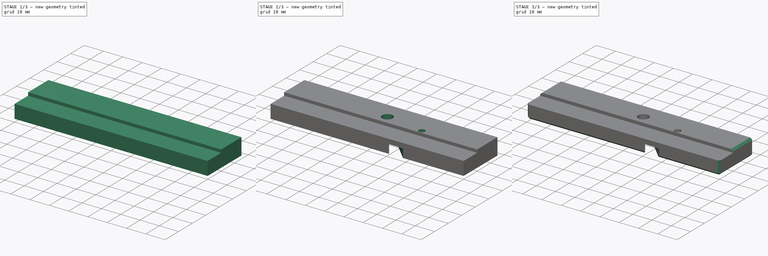
[diagram: build sequence overview — one tinted view per stage of 3, left to right]
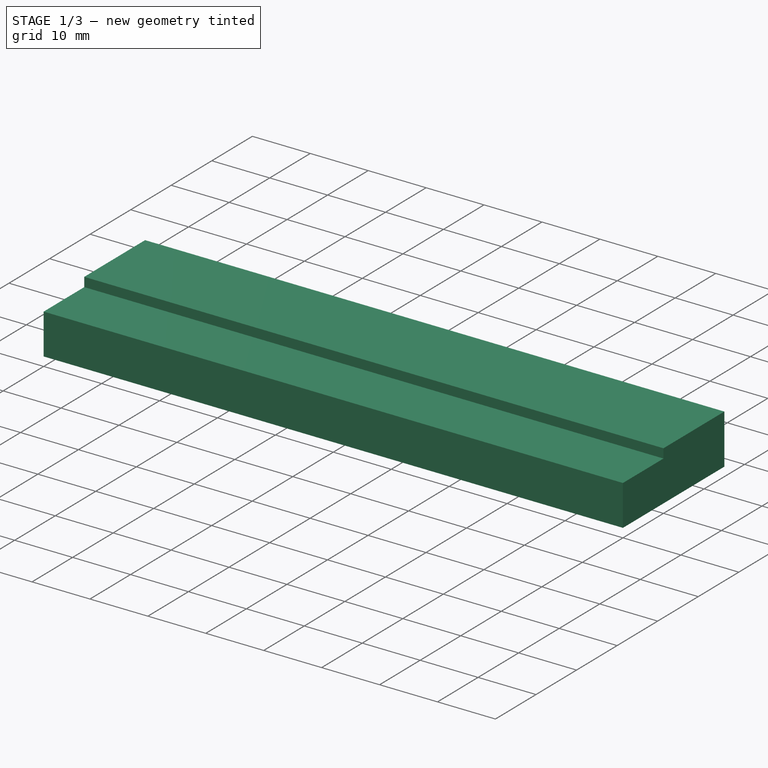
[diagram: stage 1 of 3 — iso view after this stage's code; geometry added in this stage tinted green]
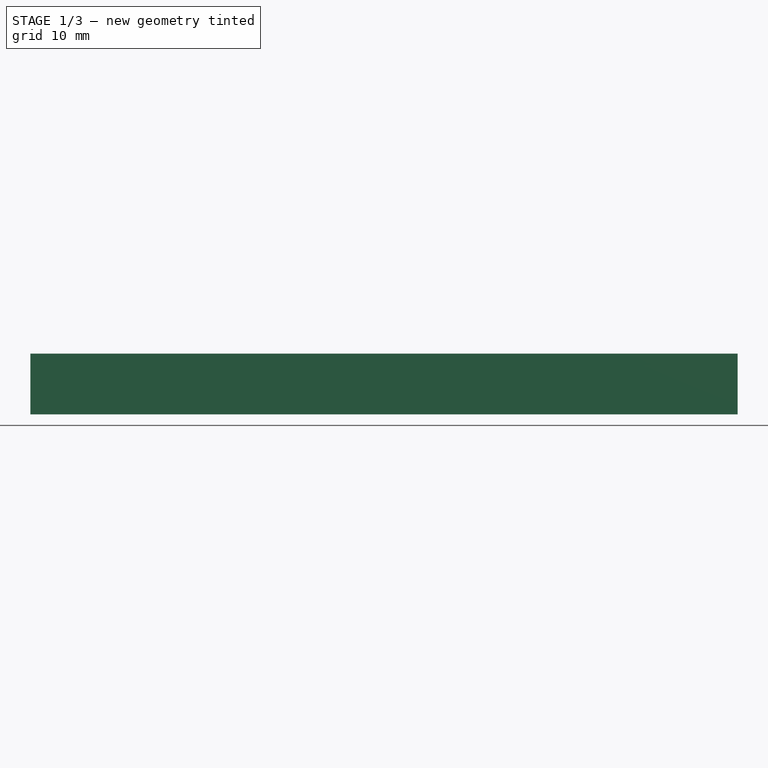
[diagram: stage 1 of 3 — front view after this stage's code; geometry added in this stage tinted green]
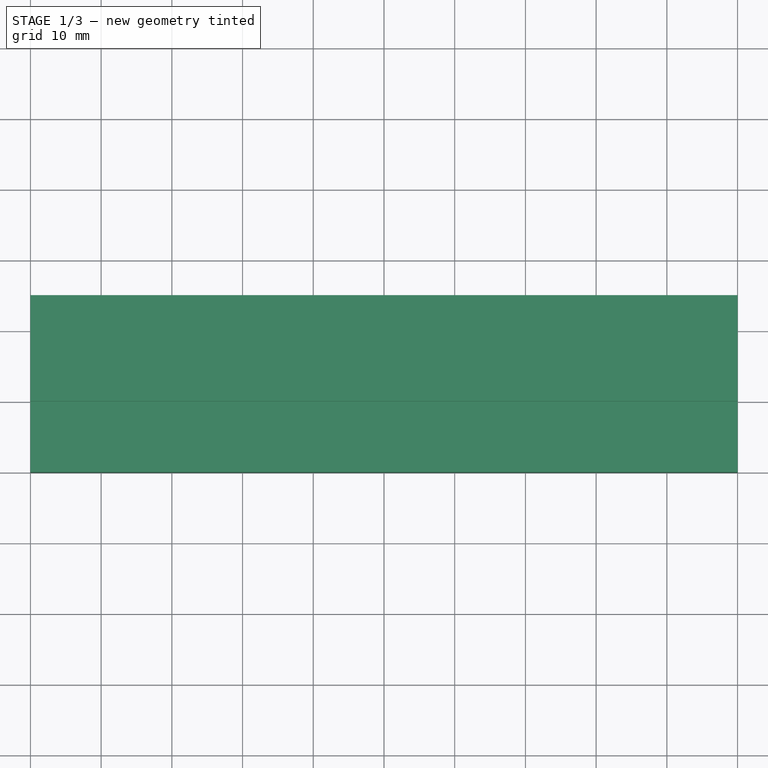
[diagram: stage 1 of 3 — top view after this stage's code; geometry added in this stage tinted green]
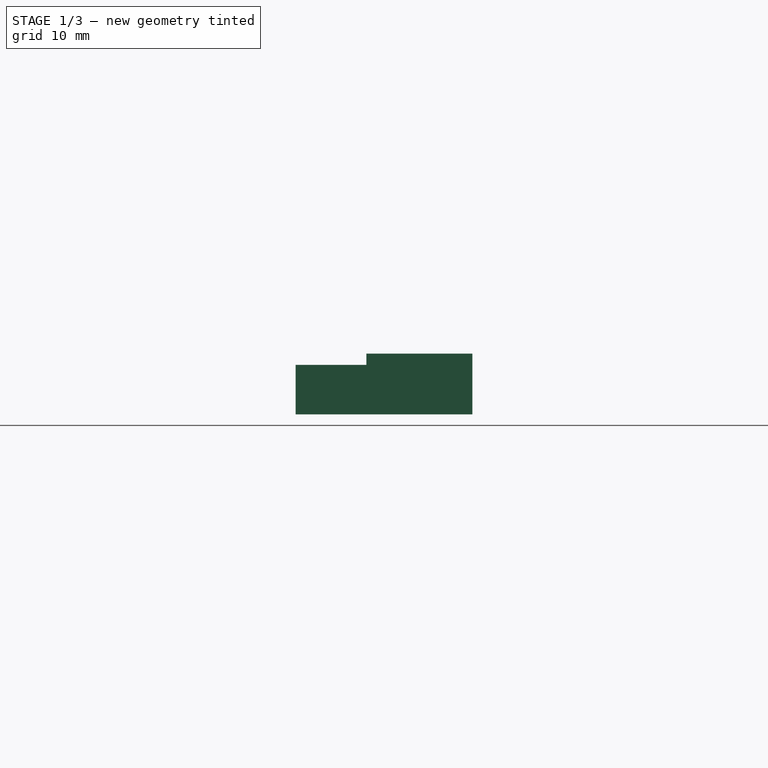
[diagram: stage 1 of 3 — right view after this stage's code; geometry added in this stage tinted green]
FCSTD DOCUMENT  (FreeCAD 0.16R6703 (Git))
Label: pnp board mount slide top
License: All rights reserved
LicenseURL: http://en.wikipedia.org/wiki/All_rights_reserved
objects: Sketcher::SketchObject×6, PartDesign::Pocket×5, PartDesign::Pad×1, PartDesign::Chamfer×1
note: 19 computed .brp shape members not serialized (recipe doc carries the construction recipe); baked Part::Feature solids carry a one-line shape summary decoded from their .brp

FEATURE [Sketcher::SketchObject] Sketch
  sketch-geometry (4):
    g0: LineSegment StartX=0 StartY=25 StartZ=0 EndX=100 EndY=25 EndZ=0
    g1: LineSegment StartX=100 StartY=25 StartZ=0 EndX=100 EndY=0 EndZ=0
    g2: LineSegment StartX=100 StartY=0 StartZ=0 EndX=0 EndY=0 EndZ=0
    g3: LineSegment StartX=0 StartY=0 StartZ=0 EndX=0 EndY=25 EndZ=0
  constraints (11):
    c: Coincident(g0,g1)
    c: Coincident(g1,g2)
    c: Coincident(g2,g3)
    c: Coincident(g3,g0)
    c: Horizontal(g0)
    c: Horizontal(g2)
    c: Vertical(g1)
    c: Vertical(g3)
    c: Coincident(g2,g-1)
    c: DistanceY(g1,g1) = 25
    c: DistanceX(g0,g0) = 100
FEATURE [PartDesign::Pad] Pad
  Length = 8.6
  Length2 = 100
  Sketch = -> Sketch
  Type = 0
FEATURE [Sketcher::SketchObject] Sketch001
  Placement = pos=(0,0,8.6) rot=(0,0,1;0rad)
  Support = -> Pad [Face6]
  sketch-geometry (4):
    g0: LineSegment StartX=-6.18261 StartY=10 StartZ=0 EndX=105 EndY=10 EndZ=0
    g1: LineSegment StartX=105 StartY=10 StartZ=0 EndX=105 EndY=-3.53542 EndZ=0
    g2: LineSegment StartX=105 StartY=-3.53542 StartZ=0 EndX=-6.18261 EndY=-3.53542 EndZ=0
    g3: LineSegment StartX=-6.18261 StartY=-3.53542 StartZ=0 EndX=-6.18261 EndY=10 EndZ=0
  constraints (8):
    c: Coincident(g0,g1)
    c: Coincident(g1,g2)
    c: Coincident(g2,g3)
    c: Coincident(g3,g0)
    c: Horizontal(g0)
    c: Horizontal(g2)
    c: Vertical(g1)
    c: Vertical(g3)
FEATURE [PartDesign::Pocket] Pocket
  Length = 1.6
  Sketch = -> Sketch001
  Type = 0
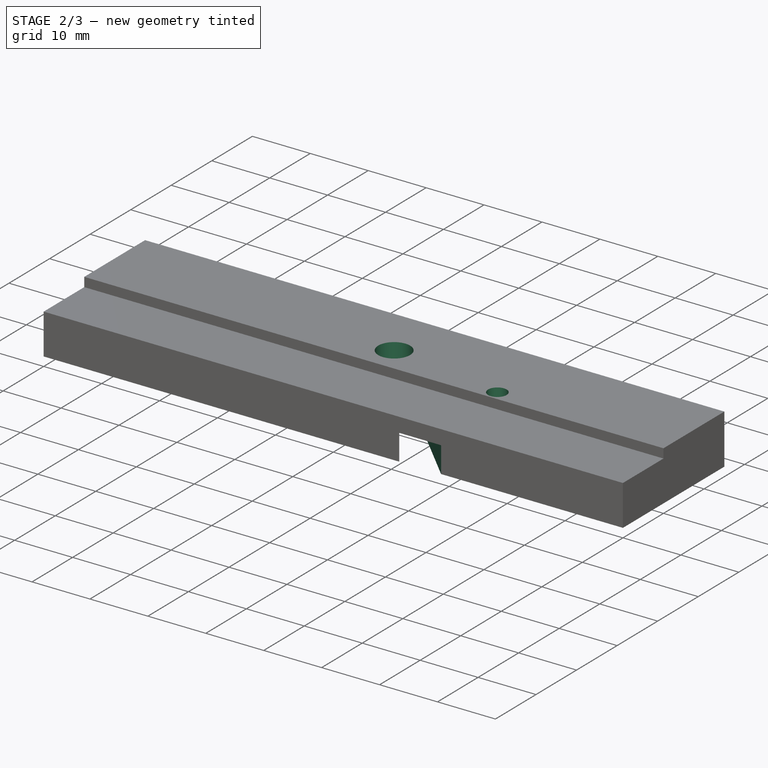
[diagram: stage 2 of 3 — iso view after this stage's code; geometry added in this stage tinted green]
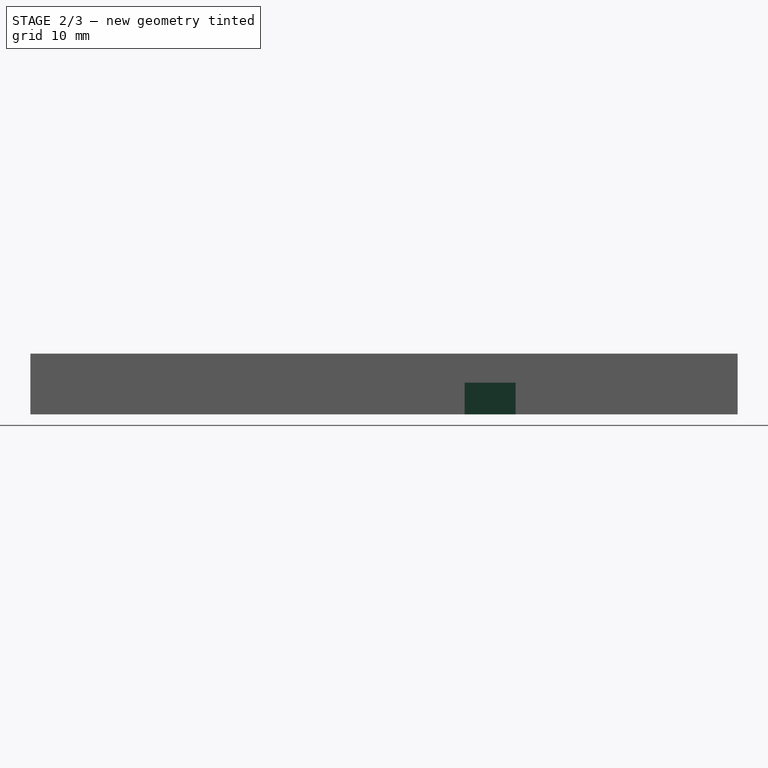
[diagram: stage 2 of 3 — front view after this stage's code; geometry added in this stage tinted green]
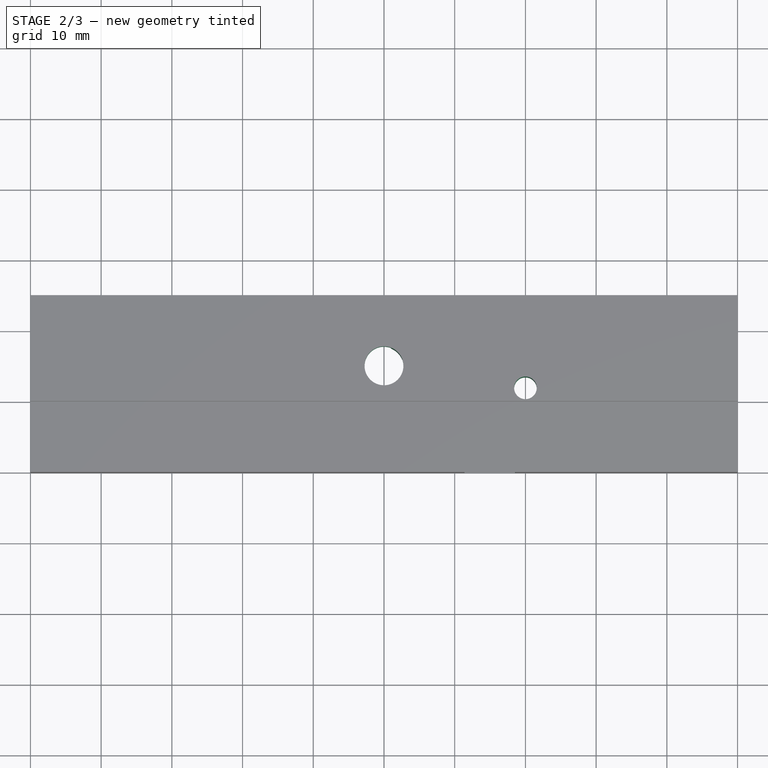
[diagram: stage 2 of 3 — top view after this stage's code; geometry added in this stage tinted green]
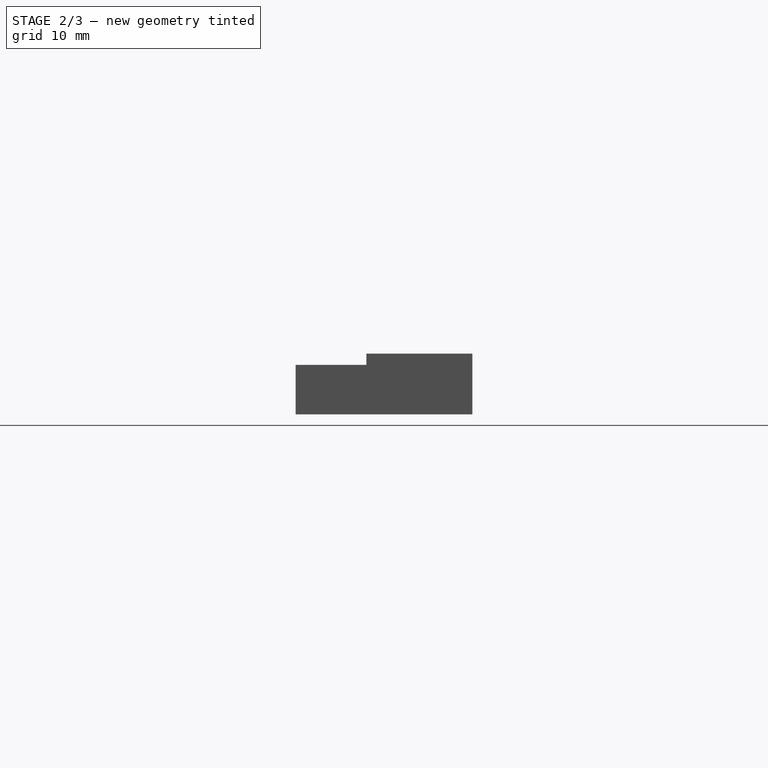
[diagram: stage 2 of 3 — right view after this stage's code; geometry added in this stage tinted green]
FEATURE [Sketcher::SketchObject] Sketch002
  Placement = pos=(0,0,8.6) rot=(0,0,1;0rad)
  Support = -> Pocket [Face5]
  sketch-geometry (2):
    g0: Circle CenterX=50 CenterY=15 CenterZ=0 NormalX=0 NormalY=0 NormalZ=1 Radius=2.75
    g1: Circle [constr] CenterX=50 CenterY=15 CenterZ=0 NormalX=0 NormalY=0 NormalZ=1 Radius=4.25
  constraints (4):
    c: Radius(g0) = 2.75
    c: DistanceX(g-1,g0) = 50
    c: Coincident(g1,g0)
    c: Radius(g1) = 4.25
FEATURE [PartDesign::Pocket] Pocket001
  Length = 5
  Sketch = -> Sketch002
  Type = 1
FEATURE [Sketcher::SketchObject] Sketch003
  Placement = pos=(0,0,0) rot=(1,0,0;3.14159rad)
  Support = -> Pocket001 [Face4]
  sketch-geometry (4):
    g0: ArcOfCircle CenterX=35.2626 CenterY=-29.7374 CenterZ=0 NormalX=0 NormalY=0 NormalZ=1 Radius=2.55 StartAngle=2.35619 EndAngle=5.49779
    g1: ArcOfCircle CenterX=70 CenterY=5 CenterZ=0 NormalX=0 NormalY=0 NormalZ=1 Radius=2.55 StartAngle=5.49779 EndAngle=8.63938
    g2: LineSegment StartX=37.0657 StartY=-31.5406 StartZ=0 EndX=71.8031 EndY=3.19688 EndZ=0
    g3: LineSegment StartX=33.4594 StartY=-27.9343 StartZ=0 EndX=68.1969 EndY=6.80312 EndZ=0
  constraints (7):
    c: Tangent(g0,g3) = 1.5708
    c: Tangent(g0,g2) = -1.5708
    c: Tangent(g2,g1) = -1.5708
    c: Tangent(g3,g1) = 1.5708
    c: Equal(g0,g1)
    c: Radius(g1) = 2.55
    c: Angle(g2) = 0.785398
FEATURE [PartDesign::Pocket] Pocket002
  Length = 4.5
  Sketch = -> Sketch003
  Type = 0
FEATURE [Sketcher::SketchObject] Sketch004
  Placement = pos=(0,0,8.6) rot=(0,0,1;0rad)
  Support = -> Pocket002 [Face8]
  sketch-geometry (2):
    g0: Circle CenterX=70 CenterY=11.8862 CenterZ=0 NormalX=0 NormalY=0 NormalZ=1 Radius=1.6
    g1: Circle [constr] CenterX=70 CenterY=11.8862 CenterZ=0 NormalX=0 NormalY=0 NormalZ=1 Radius=2.75886
  constraints (2):
    c: Radius(g0) = 1.6
    c: Coincident(g1,g0)
FEATURE [PartDesign::Pocket] Pocket003
  Length = 5
  Sketch = -> Sketch004
  Type = 1
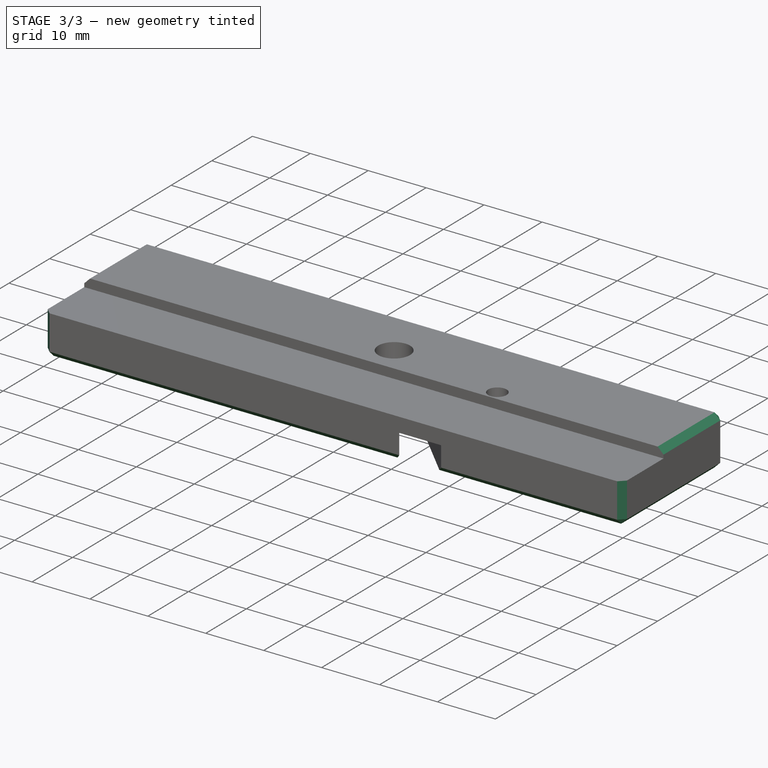
[diagram: stage 3 of 3 — iso view after this stage's code; geometry added in this stage tinted green]
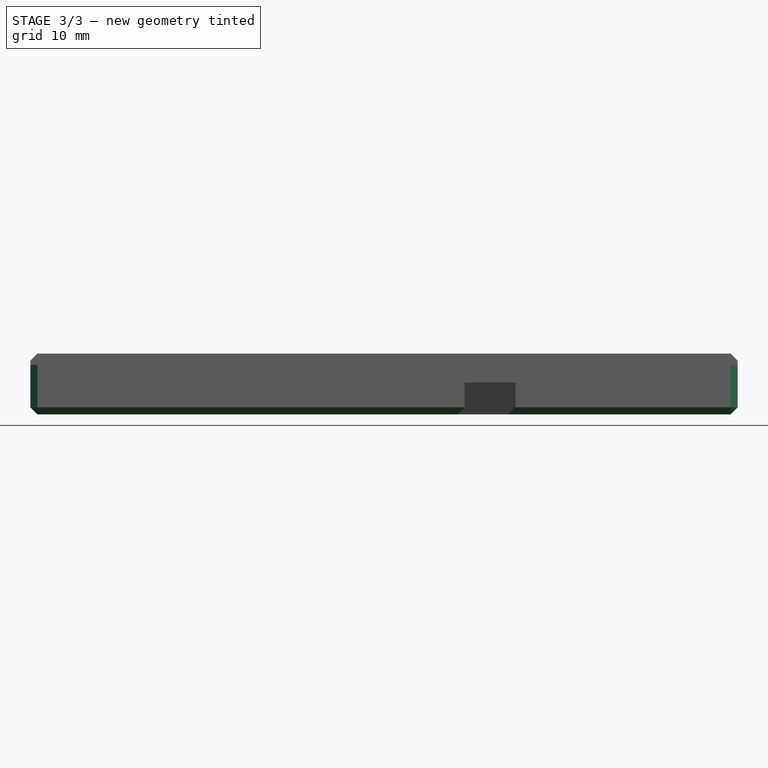
[diagram: stage 3 of 3 — front view after this stage's code; geometry added in this stage tinted green]
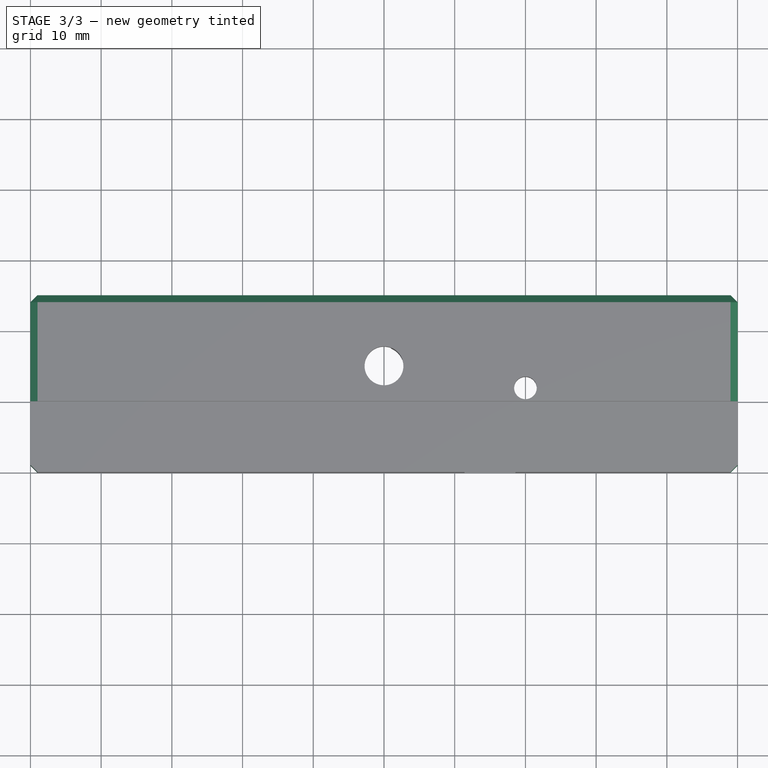
[diagram: stage 3 of 3 — top view after this stage's code; geometry added in this stage tinted green]
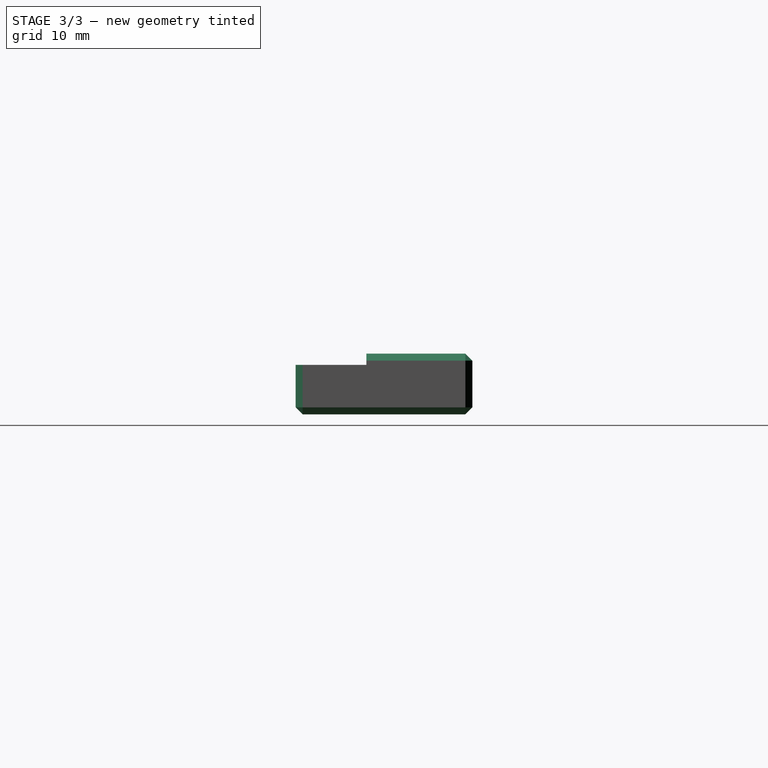
[diagram: stage 3 of 3 — right view after this stage's code; geometry added in this stage tinted green]
FEATURE [Sketcher::SketchObject] Sketch005
  ExternalGeometry = -> [Pocket003]
  Placement = pos=(0,0,0) rot=(1,0,0;3.14159rad)
  Support = -> Pocket003 [Face6]
  sketch-geometry (7):
    g0: LineSegment StartX=72.5241 StartY=-13.9066 StartZ=0 EndX=73.0118 EndY=-10.7105 EndZ=0
    g1: LineSegment StartX=73.0118 StartY=-10.7105 StartZ=0 EndX=70.4877 EndY=-8.69005 EndZ=0
    g2: LineSegment StartX=70.4877 StartY=-8.69005 StartZ=0 EndX=67.4759 EndY=-9.86579 EndZ=0
    g3: LineSegment StartX=67.4759 StartY=-9.86579 StartZ=0 EndX=66.9882 EndY=-13.062 EndZ=0
    g4: LineSegment StartX=66.9882 StartY=-13.062 StartZ=0 EndX=69.5123 EndY=-15.0824 EndZ=0
    g5: LineSegment StartX=69.5123 StartY=-15.0824 StartZ=0 EndX=72.5241 EndY=-13.9066 EndZ=0
    g6: Circle [constr] CenterX=70 CenterY=-11.8862 CenterZ=0 NormalX=0 NormalY=0 NormalZ=1 Radius=3.23316
  constraints (15):
    c: Coincident(g0,g1)
    c: Coincident(g1,g2)
    c: Coincident(g2,g3)
    c: Coincident(g3,g4)
    c: Coincident(g4,g5)
    c: Coincident(g5,g0)
    c: Equal(g0, g1-g5) x5
    c: PointOnObject(g0,g6)
    c: PointOnObject(g1,g6)
    c: PointOnObject(g2,g6)
    c: PointOnObject(g3,g6)
    c: PointOnObject(g4,g6)
    c: PointOnObject(g5,g6)
    c: Coincident(g6,g-3)
    c: Distance(g0,g3) = 5.6
FEATURE [PartDesign::Pocket] Pocket004
  Length = 3.5
  Sketch = -> Sketch005
  Type = 0
FEATURE [PartDesign::Chamfer] Chamfer
  Base = -> Pocket004 [Edge12,Edge40,Edge13,Edge1,Edge22,Edge20,Edge30,Edge6,Edge5,Edge33,Edge8,Edge34,Edge7]
  Size = 1
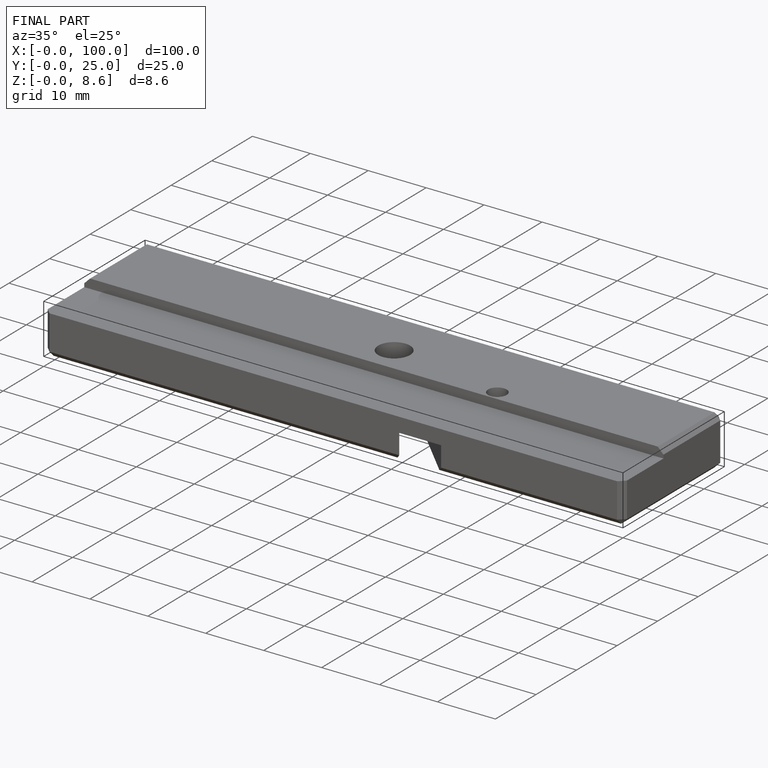
[diagram: finished part — iso view with bounding-box wireframe]
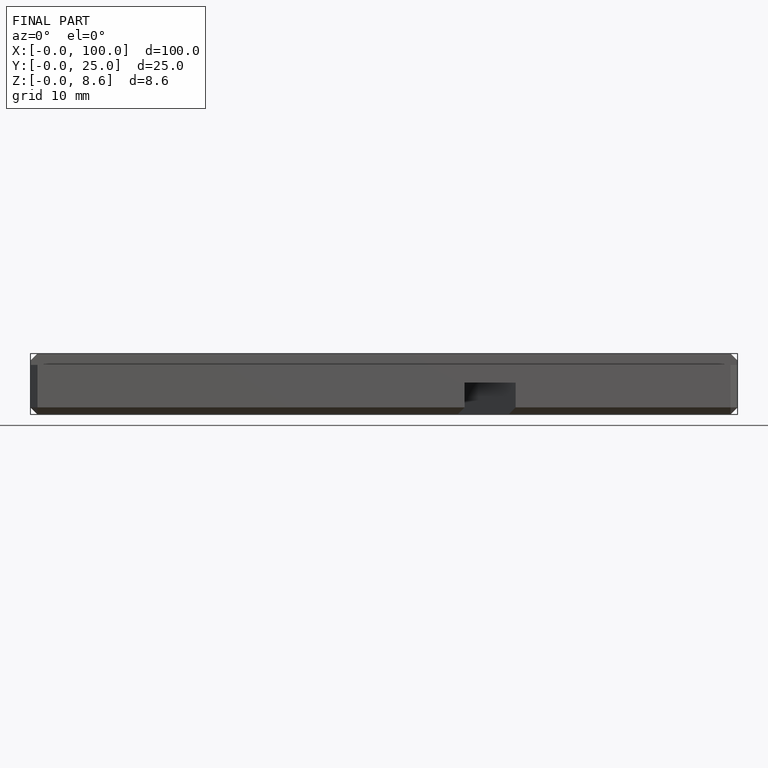
[diagram: finished part — front view with bounding-box wireframe]
